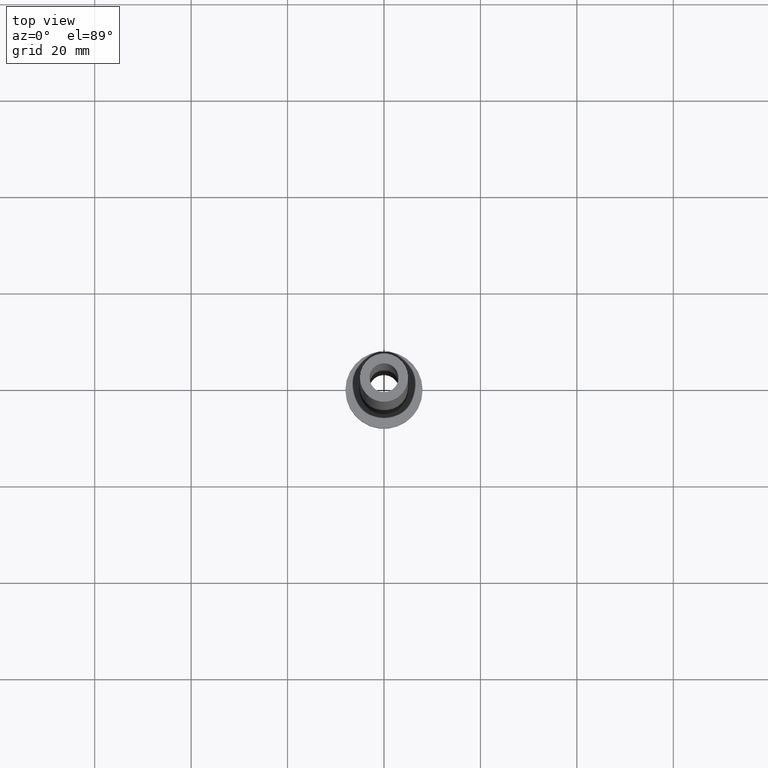
[diagram: clean part render]
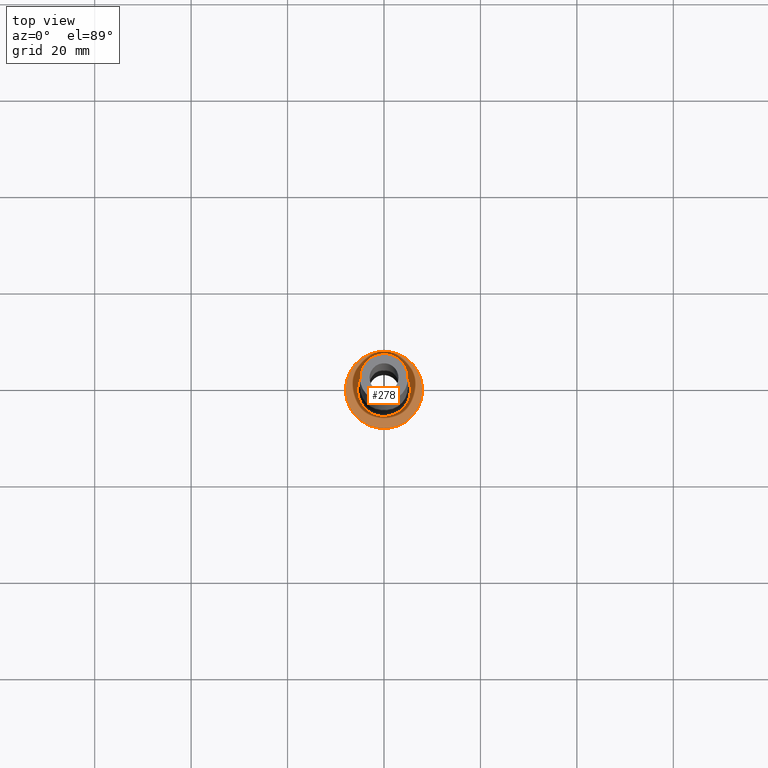
[diagram: same view with one face highlighted and labeled with its STEP entity id]
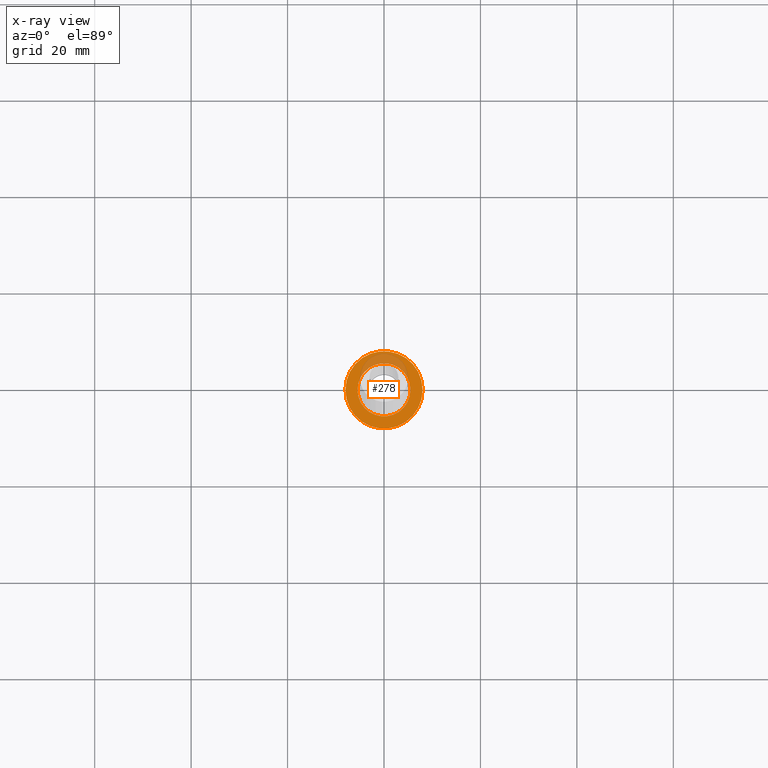
[diagram: x-ray of the same camera — body ghosted, the highlighted face saturated]
A machine part, top view. The second image highlights one B-rep face of the part: STEP entity #278.
The next image is the same camera in x-ray: the body ghosted, the highlighted face saturated — about 18% of this face is hidden behind the body in this view.
In plain terms, the highlighted planar face has unit normal (0, 0, 1).
Its self-contained STEP definition (entity closure, byte-faithful):
#4 = CARTESIAN_POINT ( 'NONE',  ( 8.000000000000000000, 9.797174393178825657E-16, 5.000000000000000000 ) ) ;
#8 = ORIENTED_EDGE ( 'NONE', *, *, #450, .T. ) ;
#22 = VERTEX_POINT ( 'NONE', #185 ) ;
#48 = DIRECTION ( 'NONE',  ( 1.000000000000000000, 0.000000000000000000, 0.000000000000000000 ) ) ;
#61 = EDGE_CURVE ( 'NONE', #22, #440, #263, .T. ) ;
#67 = AXIS2_PLACEMENT_3D ( 'NONE', #292, #222, #195 ) ;
#133 = EDGE_LOOP ( 'NONE', ( #335, #8 ) ) ;
#147 = EDGE_CURVE ( 'NONE', #189, #374, #389, .T. ) ;
#148 = FACE_OUTER_BOUND ( 'NONE', #337, .T. ) ;
#165 = CARTESIAN_POINT ( 'NONE',  ( -8.000000000000000000, 0.000000000000000000, 5.000000000000000000 ) ) ;
#177 = CARTESIAN_POINT ( 'NONE',  ( 0.000000000000000000, 0.000000000000000000, 5.000000000000000000 ) ) ;
#180 = DIRECTION ( 'NONE',  ( 0.000000000000000000, 0.000000000000000000, 1.000000000000000000 ) ) ;
#185 = CARTESIAN_POINT ( 'NONE',  ( 5.500000000000000000, 0.000000000000000000, 5.000000000000002665 ) ) ;
#189 = VERTEX_POINT ( 'NONE', #4 ) ;
#195 = DIRECTION ( 'NONE',  ( 1.000000000000000000, 0.000000000000000000, 0.000000000000000000 ) ) ;
#199 = AXIS2_PLACEMENT_3D ( 'NONE', #270, #366, #48 ) ;
#205 = AXIS2_PLACEMENT_3D ( 'NONE', #177, #180, #461 ) ;
#211 = AXIS2_PLACEMENT_3D ( 'NONE', #422, #321, #328 ) ;
#218 = PLANE ( 'NONE',  #312 ) ;
#222 = DIRECTION ( 'NONE',  ( -0.000000000000000000, -0.000000000000000000, -1.000000000000000000 ) ) ;
#224 = CARTESIAN_POINT ( 'NONE',  ( -5.500000000000000000, 6.735557395310442023E-16, 5.000000000000002665 ) ) ;
#256 = EDGE_CURVE ( 'NONE', #374, #189, #318, .T. ) ;
#263 = CIRCLE ( 'NONE', #67, 5.500000000000000000 ) ;
#270 = CARTESIAN_POINT ( 'NONE',  ( 0.000000000000000000, 0.000000000000000000, 5.000000000000000000 ) ) ;
#278 = ADVANCED_FACE ( 'NONE', ( #395, #148 ), #218, .T. ) ;
#292 = CARTESIAN_POINT ( 'NONE',  ( 0.000000000000000000, 0.000000000000000000, 5.000000000000000000 ) ) ;
#312 = AXIS2_PLACEMENT_3D ( 'NONE', #388, #361, #364 ) ;
#318 = CIRCLE ( 'NONE', #205, 8.000000000000000000 ) ;
#321 = DIRECTION ( 'NONE',  ( 0.000000000000000000, 0.000000000000000000, 1.000000000000000000 ) ) ;
#328 = DIRECTION ( 'NONE',  ( 1.000000000000000000, 0.000000000000000000, 0.000000000000000000 ) ) ;
#334 = ORIENTED_EDGE ( 'NONE', *, *, #256, .T. ) ;
#335 = ORIENTED_EDGE ( 'NONE', *, *, #61, .T. ) ;
#337 = EDGE_LOOP ( 'NONE', ( #334, #367 ) ) ;
#361 = DIRECTION ( 'NONE',  ( 0.000000000000000000, 0.000000000000000000, 1.000000000000000000 ) ) ;
#364 = DIRECTION ( 'NONE',  ( 1.000000000000000000, 0.000000000000000000, -0.000000000000000000 ) ) ;
#366 = DIRECTION ( 'NONE',  ( -0.000000000000000000, -0.000000000000000000, -1.000000000000000000 ) ) ;
#367 = ORIENTED_EDGE ( 'NONE', *, *, #147, .T. ) ;
#374 = VERTEX_POINT ( 'NONE', #165 ) ;
#388 = CARTESIAN_POINT ( 'NONE',  ( 0.000000000000000000, 0.000000000000000000, 5.000000000000000000 ) ) ;
#389 = CIRCLE ( 'NONE', #211, 8.000000000000000000 ) ;
#395 = FACE_BOUND ( 'NONE', #133, .T. ) ;
#419 = CIRCLE ( 'NONE', #199, 5.500000000000000000 ) ;
#422 = CARTESIAN_POINT ( 'NONE',  ( 0.000000000000000000, 0.000000000000000000, 5.000000000000000000 ) ) ;
#440 = VERTEX_POINT ( 'NONE', #224 ) ;
#450 = EDGE_CURVE ( 'NONE', #440, #22, #419, .T. ) ;
#461 = DIRECTION ( 'NONE',  ( 1.000000000000000000, 0.000000000000000000, 0.000000000000000000 ) ) ;